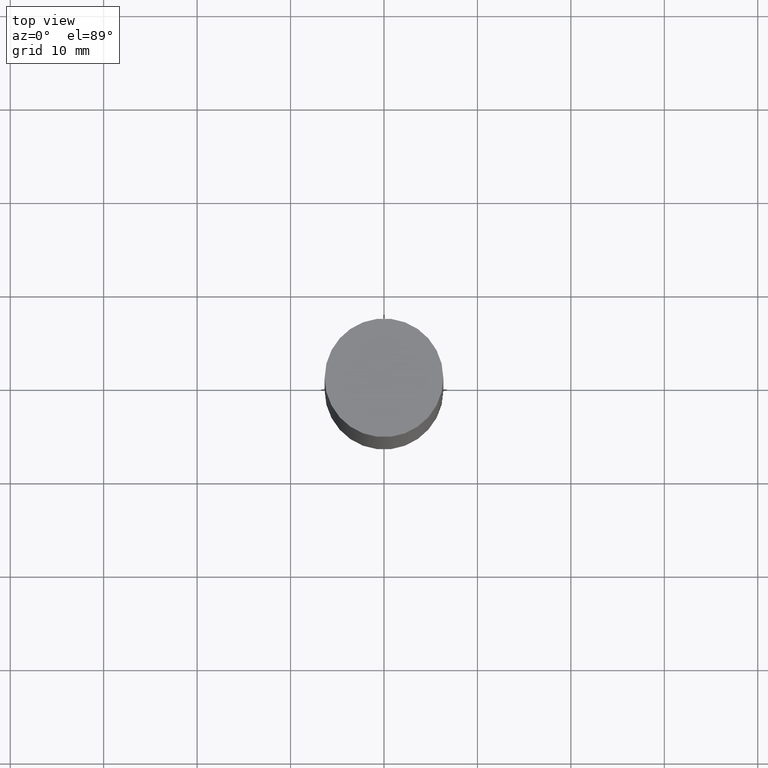
[diagram: clean part render]
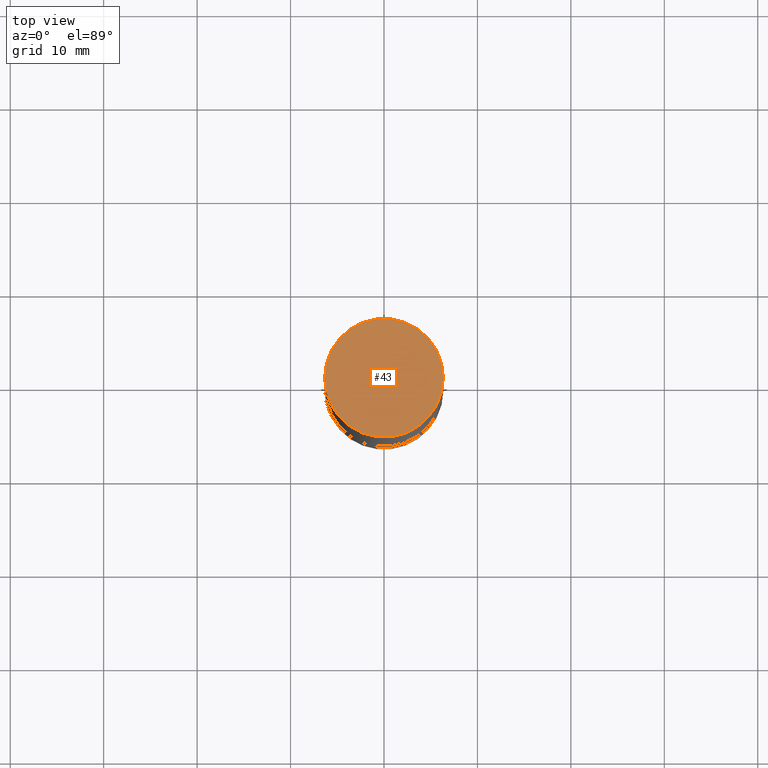
[diagram: same view with one face highlighted and labeled with its STEP entity id]
A machine part, top view. The second image highlights one B-rep face of the part: STEP entity #43.
In plain terms, the highlighted planar face has unit normal (0, 0, 1).
Its self-contained STEP definition (entity closure, byte-faithful):
#13 = EDGE_CURVE ( 'NONE', #666, #244, #616, .T. ) ;
#43 = ADVANCED_FACE ( 'NONE', ( #421 ), #209, .T. ) ;
#48 = DIRECTION ( 'NONE',  ( 2.438088387897959769E-29, 3.492890411551753071E-15, 1.000000000000000000 ) ) ;
#76 = EDGE_CURVE ( 'NONE', #244, #666, #214, .T. ) ;
#96 = DIRECTION ( 'NONE',  ( 1.000000000000000000, -6.982962677686266711E-15, 0.000000000000000000 ) ) ;
#125 = AXIS2_PLACEMENT_3D ( 'NONE', #623, #48, #517 ) ;
#168 = DIRECTION ( 'NONE',  ( 2.445468806185136597E-29, 3.492890411551752677E-15, 1.000000000000000000 ) ) ;
#169 = CARTESIAN_POINT ( 'NONE',  ( 0.2500000000000000000, -1.743627060358652092E-15, 1.092739197465705287E-15 ) ) ;
#178 = CARTESIAN_POINT ( 'NONE',  ( -0.2500000000000000000, 6.257098548958748880E-16, 1.092739197465709232E-15 ) ) ;
#206 = CARTESIAN_POINT ( 'NONE',  ( 7.336406418555409790E-29, 2.113609062914567177E-18, 1.092739197465705287E-15 ) ) ;
#209 = PLANE ( 'NONE',  #125 ) ;
#214 = CIRCLE ( 'NONE', #434, 0.2500000000000000000 ) ;
#244 = VERTEX_POINT ( 'NONE', #178 ) ;
#284 = ORIENTED_EDGE ( 'NONE', *, *, #76, .T. ) ;
#308 = EDGE_LOOP ( 'NONE', ( #543, #284 ) ) ;
#421 = FACE_OUTER_BOUND ( 'NONE', #308, .T. ) ;
#434 = AXIS2_PLACEMENT_3D ( 'NONE', #525, #168, #96 ) ;
#454 = AXIS2_PLACEMENT_3D ( 'NONE', #206, #462, #570 ) ;
#462 = DIRECTION ( 'NONE',  ( 2.445468806185136597E-29, 3.492890411551752677E-15, 1.000000000000000000 ) ) ;
#517 = DIRECTION ( 'NONE',  ( -1.000000000000000000, 6.982962677686265922E-15, -9.839502134516470631E-33 ) ) ;
#525 = CARTESIAN_POINT ( 'NONE',  ( 7.336406418555409790E-29, 2.113609062914567177E-18, 1.092739197465705287E-15 ) ) ;
#543 = ORIENTED_EDGE ( 'NONE', *, *, #13, .T. ) ;
#570 = DIRECTION ( 'NONE',  ( 1.000000000000000000, -6.982962677686266711E-15, 0.000000000000000000 ) ) ;
#616 = CIRCLE ( 'NONE', #454, 0.2500000000000000000 ) ;
#623 = CARTESIAN_POINT ( 'NONE',  ( 1.745740669421639647E-15, 0.2500000000000000000, 5.463695987328526437E-16 ) ) ;
#666 = VERTEX_POINT ( 'NONE', #169 ) ;